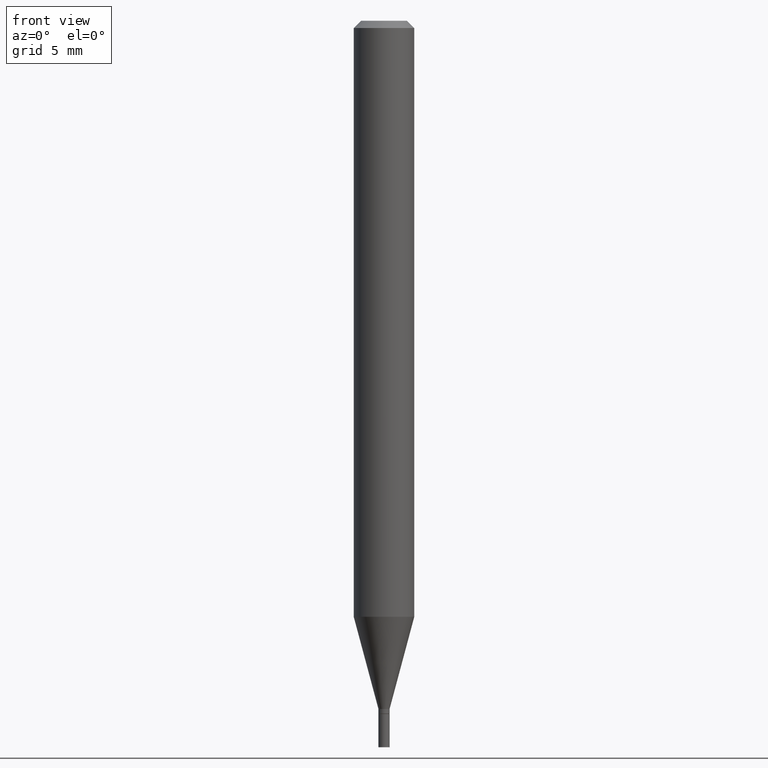
[diagram: clean part render]
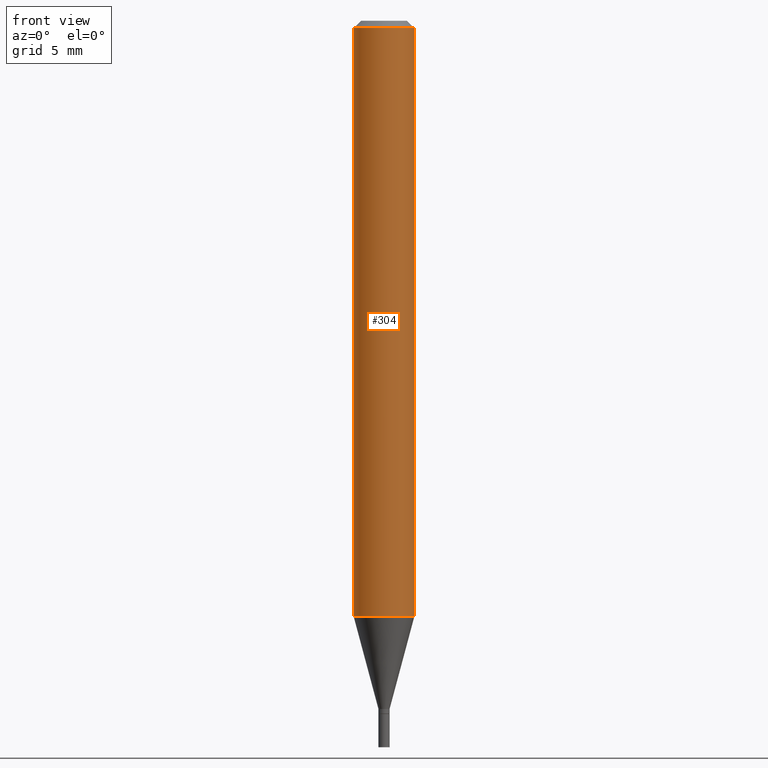
[diagram: same view with one face highlighted and labeled with its STEP entity id]
A machine part, front view. The second image highlights one B-rep face of the part: STEP entity #304.
In plain terms, the highlighted cylindrical surface (edge-blend (fillet) strip) has radius 1.5875 mm, axis along (-0, 0, 1).
Its self-contained STEP definition (entity closure, byte-faithful):
#3 = CARTESIAN_POINT ( 'NONE',  ( 3.009553868105685827E-29, -4.296845309233809826E-15, -1.230665408813987893 ) ) ;
#40 = ORIENTED_EDGE ( 'NONE', *, *, #101, .T. ) ;
#69 = DIRECTION ( 'NONE',  ( 1.000000000000000000, -6.982962677686266711E-15, 4.876176775795935793E-29 ) ) ;
#72 = CARTESIAN_POINT ( 'NONE',  ( 0.06249999999999997918, -4.733280476589200707E-15, -1.230665408813987893 ) ) ;
#82 = EDGE_CURVE ( 'NONE', #317, #109, #379, .T. ) ;
#83 = AXIS2_PLACEMENT_3D ( 'NONE', #216, #133, #69 ) ;
#101 = EDGE_CURVE ( 'NONE', #253, #363, #414, .T. ) ;
#109 = VERTEX_POINT ( 'NONE', #419 ) ;
#110 = EDGE_CURVE ( 'NONE', #109, #363, #314, .T. ) ;
#128 = CARTESIAN_POINT ( 'NONE',  ( 0.06250000000000000000, -4.364351673553916694E-16, 3.047610484872459871E-30 ) ) ;
#133 = DIRECTION ( 'NONE',  ( -2.445468806185136597E-29, 3.491481338843145583E-15, 1.000000000000000000 ) ) ;
#139 = ORIENTED_EDGE ( 'NONE', *, *, #110, .F. ) ;
#140 = VECTOR ( 'NONE', #313, 39.37007874015748143 ) ;
#141 = CARTESIAN_POINT ( 'NONE',  ( -0.06249999999999997918, -3.852756099383747210E-15, -1.230665408813987893 ) ) ;
#146 = DIRECTION ( 'NONE',  ( -2.445468806185136597E-29, 3.491481338843145583E-15, 1.000000000000000000 ) ) ;
#149 = CARTESIAN_POINT ( 'NONE',  ( 0.06250000000000000000, -4.888073874380388472E-16, -0.01499999999999999944 ) ) ;
#165 = CIRCLE ( 'NONE', #180, 0.06250000000000000000 ) ;
#175 = ORIENTED_EDGE ( 'NONE', *, *, #232, .T. ) ;
#180 = AXIS2_PLACEMENT_3D ( 'NONE', #3, #146, #213 ) ;
#213 = DIRECTION ( 'NONE',  ( 1.000000000000000000, -6.982962677686262766E-15, 0.000000000000000000 ) ) ;
#216 = CARTESIAN_POINT ( 'NONE',  ( 0.000000000000000000, 0.000000000000000000, 0.000000000000000000 ) ) ;
#224 = ORIENTED_EDGE ( 'NONE', *, *, #82, .F. ) ;
#232 = EDGE_CURVE ( 'NONE', #317, #253, #165, .T. ) ;
#233 = CARTESIAN_POINT ( 'NONE',  ( 3.668203209277705088E-31, -5.237222008264718399E-17, -0.01499999999999999944 ) ) ;
#253 = VERTEX_POINT ( 'NONE', #72 ) ;
#256 = AXIS2_PLACEMENT_3D ( 'NONE', #233, #376, #411 ) ;
#304 = ADVANCED_FACE ( 'NONE', ( #399 ), #395, .T. ) ;
#313 = DIRECTION ( 'NONE',  ( -2.445468806185136877E-29, 3.491481338843145188E-15, 1.000000000000000000 ) ) ;
#314 = CIRCLE ( 'NONE', #256, 0.06250000000000000000 ) ;
#317 = VERTEX_POINT ( 'NONE', #141 ) ;
#341 = VECTOR ( 'NONE', #381, 39.37007874015748143 ) ;
#363 = VERTEX_POINT ( 'NONE', #149 ) ;
#376 = DIRECTION ( 'NONE',  ( -2.445468806185136597E-29, 3.491481338843145583E-15, 1.000000000000000000 ) ) ;
#379 = LINE ( 'NONE', #446, #140 ) ;
#381 = DIRECTION ( 'NONE',  ( -2.445468806185136877E-29, 3.491481338843145188E-15, 1.000000000000000000 ) ) ;
#395 = CYLINDRICAL_SURFACE ( 'NONE', #83, 0.06250000000000000000 ) ;
#399 = FACE_OUTER_BOUND ( 'NONE', #423, .T. ) ;
#411 = DIRECTION ( 'NONE',  ( 1.000000000000000000, -6.982962677686266711E-15, 0.000000000000000000 ) ) ;
#414 = LINE ( 'NONE', #128, #341 ) ;
#419 = CARTESIAN_POINT ( 'NONE',  ( -0.06250000000000000000, -1.730519554808165837E-15, -0.01499999999999999944 ) ) ;
#423 = EDGE_LOOP ( 'NONE', ( #224, #175, #40, #139 ) ) ;
#446 = CARTESIAN_POINT ( 'NONE',  ( -0.06250000000000000000, 4.440892098500626162E-16, -3.074334431409316114E-30 ) ) ;